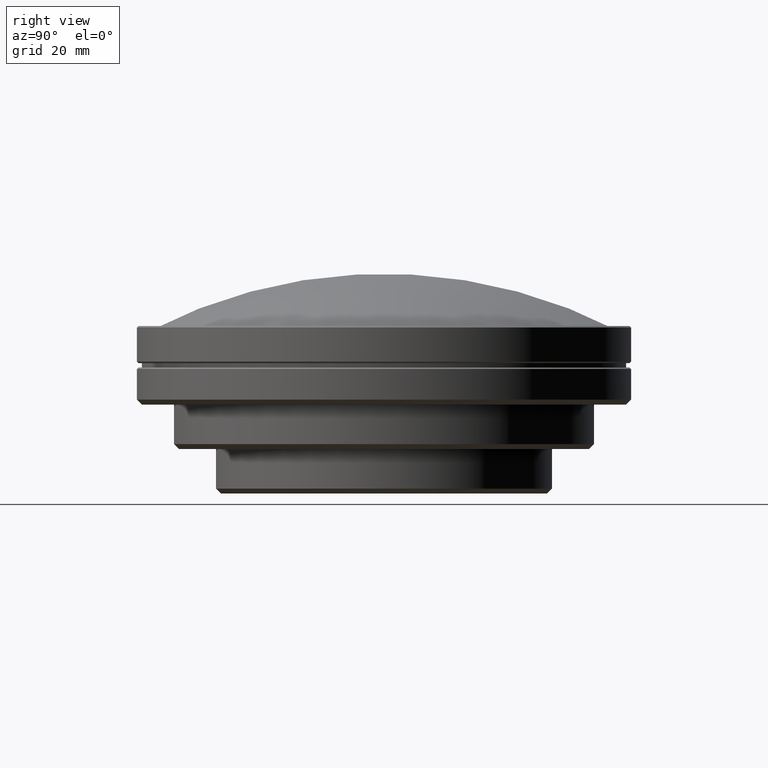
[diagram: clean part render]
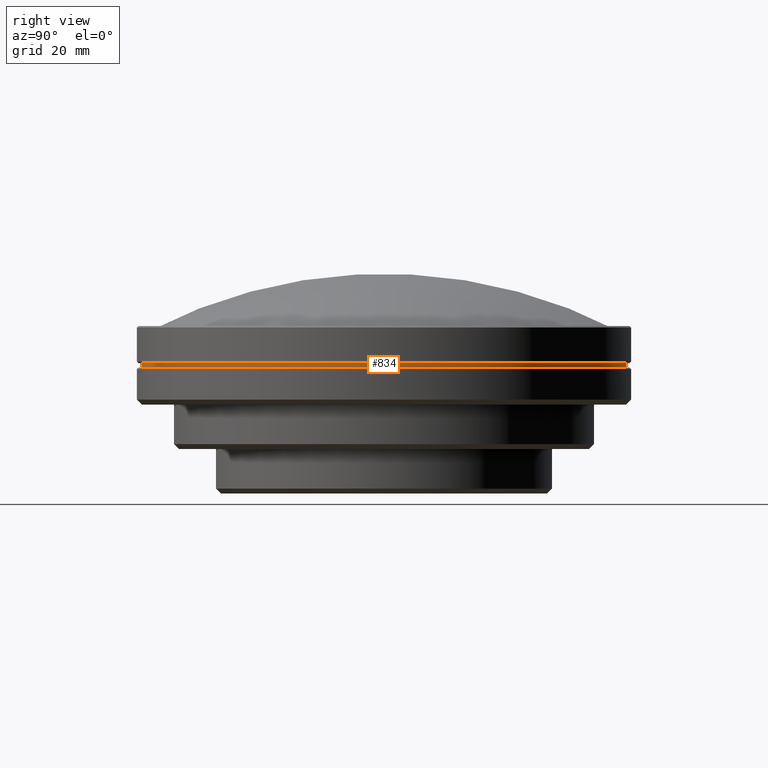
[diagram: same view with one face highlighted and labeled with its STEP entity id]
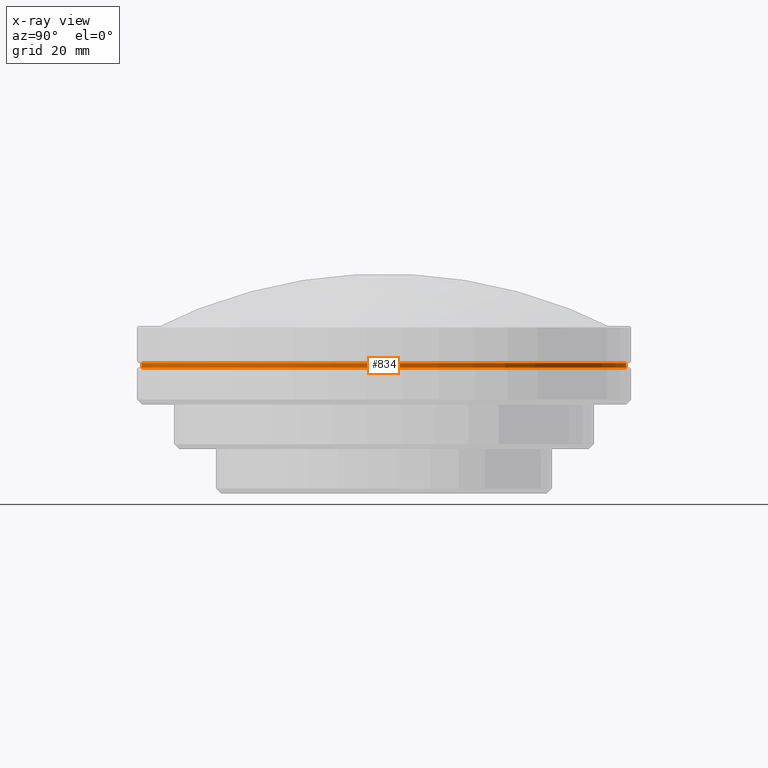
[diagram: x-ray of the same camera — body ghosted, the highlighted face saturated]
A machine part, right view. The second image highlights one B-rep face of the part: STEP entity #834.
The next image is the same camera in x-ray: the body ghosted, the highlighted face saturated — about 0% of this face is hidden behind the body in this view.
In plain terms, the highlighted cylindrical surface (partial cylindrical patch) has radius 49 mm, axis along (0, 0, -1).
Its self-contained STEP definition (entity closure, byte-faithful):
#52 = LINE ( 'NONE', #979, #1001 ) ;
#57 = DIRECTION ( 'NONE',  ( 0.000000000000000000, 1.000000000000000000, 0.000000000000000000 ) ) ;
#74 = AXIS2_PLACEMENT_3D ( 'NONE', #915, #387, #459 ) ;
#87 = VERTEX_POINT ( 'NONE', #280 ) ;
#141 = CIRCLE ( 'NONE', #229, 49.00000000000000000 ) ;
#149 = CYLINDRICAL_SURFACE ( 'NONE', #74, 49.00000000000000000 ) ;
#153 = ORIENTED_EDGE ( 'NONE', *, *, #319, .F. ) ;
#158 = VERTEX_POINT ( 'NONE', #175 ) ;
#175 = CARTESIAN_POINT ( 'NONE',  ( 0.000000000000000000, -49.00000000000000000, 35.38887531448999368 ) ) ;
#212 = CARTESIAN_POINT ( 'NONE',  ( 0.000000000000000000, 0.000000000000000000, 34.50000000000000000 ) ) ;
#229 = AXIS2_PLACEMENT_3D ( 'NONE', #678, #820, #57 ) ;
#280 = CARTESIAN_POINT ( 'NONE',  ( 0.000000000000000000, 49.00000000000000000, 35.38887531448999368 ) ) ;
#290 = EDGE_CURVE ( 'NONE', #87, #158, #141, .T. ) ;
#293 = FACE_OUTER_BOUND ( 'NONE', #668, .T. ) ;
#302 = CIRCLE ( 'NONE', #858, 49.00000000000000000 ) ;
#317 = ORIENTED_EDGE ( 'NONE', *, *, #323, .T. ) ;
#319 = EDGE_CURVE ( 'NONE', #429, #619, #302, .T. ) ;
#323 = EDGE_CURVE ( 'NONE', #429, #87, #52, .T. ) ;
#374 = DIRECTION ( 'NONE',  ( 0.000000000000000000, 0.000000000000000000, 1.000000000000000000 ) ) ;
#381 = DIRECTION ( 'NONE',  ( 0.000000000000000000, 1.000000000000000000, 0.000000000000000000 ) ) ;
#387 = DIRECTION ( 'NONE',  ( 0.000000000000000000, 0.000000000000000000, -1.000000000000000000 ) ) ;
#429 = VERTEX_POINT ( 'NONE', #482 ) ;
#443 = LINE ( 'NONE', #448, #992 ) ;
#448 = CARTESIAN_POINT ( 'NONE',  ( 0.000000000000000000, -49.00000000000000000, 34.50000000000000000 ) ) ;
#459 = DIRECTION ( 'NONE',  ( 0.000000000000000000, -1.000000000000000000, 0.000000000000000000 ) ) ;
#472 = CARTESIAN_POINT ( 'NONE',  ( 0.000000000000000000, -49.00000000000000000, 34.50000000000000000 ) ) ;
#482 = CARTESIAN_POINT ( 'NONE',  ( 0.000000000000000000, 49.00000000000000000, 34.50000000000000000 ) ) ;
#619 = VERTEX_POINT ( 'NONE', #472 ) ;
#668 = EDGE_LOOP ( 'NONE', ( #993, #844, #153, #317 ) ) ;
#678 = CARTESIAN_POINT ( 'NONE',  ( 0.000000000000000000, 0.000000000000000000, 35.38887531448999368 ) ) ;
#747 = DIRECTION ( 'NONE',  ( 0.000000000000000000, 0.000000000000000000, 1.000000000000000000 ) ) ;
#755 = DIRECTION ( 'NONE',  ( 0.000000000000000000, 0.000000000000000000, -1.000000000000000000 ) ) ;
#820 = DIRECTION ( 'NONE',  ( 0.000000000000000000, 0.000000000000000000, -1.000000000000000000 ) ) ;
#834 = ADVANCED_FACE ( 'NONE', ( #293 ), #149, .T. ) ;
#844 = ORIENTED_EDGE ( 'NONE', *, *, #853, .F. ) ;
#853 = EDGE_CURVE ( 'NONE', #619, #158, #443, .T. ) ;
#858 = AXIS2_PLACEMENT_3D ( 'NONE', #212, #755, #381 ) ;
#915 = CARTESIAN_POINT ( 'NONE',  ( 0.000000000000000000, 0.000000000000000000, 56.14223884068000103 ) ) ;
#979 = CARTESIAN_POINT ( 'NONE',  ( 0.000000000000000000, 49.00000000000000000, 34.50000000000000000 ) ) ;
#992 = VECTOR ( 'NONE', #747, 1000.000000000000000 ) ;
#993 = ORIENTED_EDGE ( 'NONE', *, *, #290, .T. ) ;
#1001 = VECTOR ( 'NONE', #374, 1000.000000000000000 ) ;